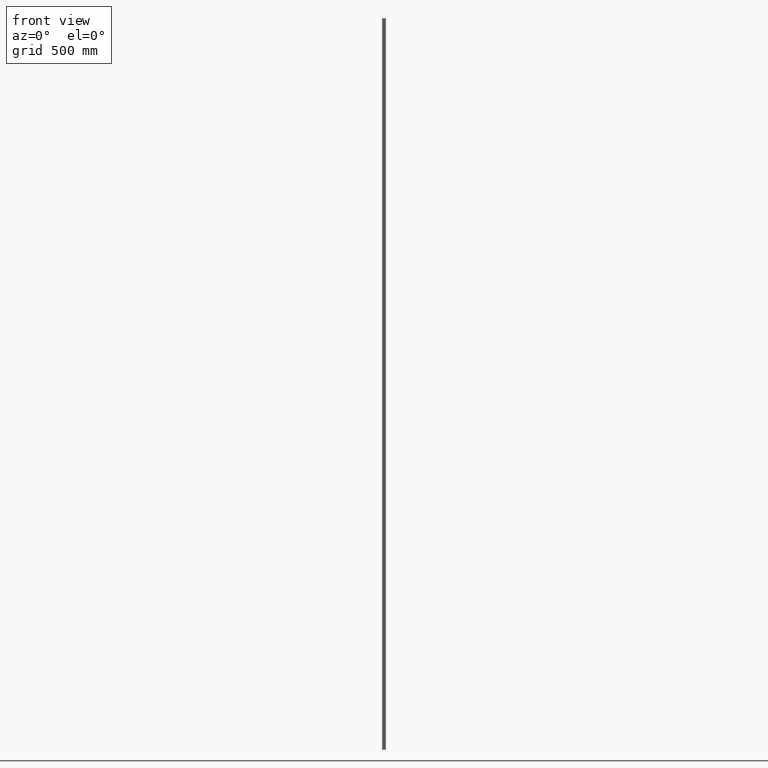
[diagram: clean part render]
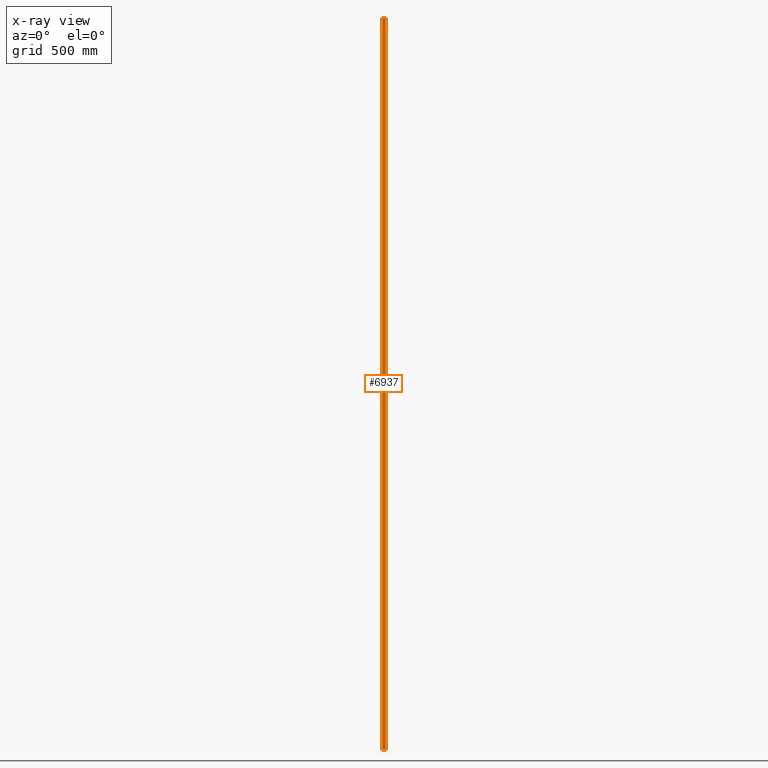
[diagram: x-ray — body ghosted, one internal face saturated and labeled with its STEP entity id]
A machine part, front view, then the same camera in x-ray: the body is ghosted and one INTERNAL B-rep face — a face not visible from any outside direction — is saturated and labeled: STEP entity #6937.
In plain terms, the highlighted planar face has unit normal (0, -1, 0).
Its self-contained STEP definition (entity closure, byte-faithful):
#61 = EDGE_CURVE ( 'NONE', #16869, #3845, #14220, .T. ) ;
#324 = DIRECTION ( 'NONE',  ( -0.000000000000000000, -0.000000000000000000, -1.000000000000000000 ) ) ;
#491 = CARTESIAN_POINT ( 'NONE',  ( -5.549999999999998934, 6.000000000000000000, -1500.000000000000000 ) ) ;
#622 = CARTESIAN_POINT ( 'NONE',  ( -5.549999999999998934, 6.000000000000000000, 1500.000000000000000 ) ) ;
#2541 = EDGE_LOOP ( 'NONE', ( #9575, #8263, #3011, #9229 ) ) ;
#2926 = LINE ( 'NONE', #491, #7095 ) ;
#3001 = EDGE_CURVE ( 'NONE', #3845, #3386, #2926, .T. ) ;
#3011 = ORIENTED_EDGE ( 'NONE', *, *, #8410, .F. ) ;
#3015 = DIRECTION ( 'NONE',  ( 0.000000000000000000, -0.000000000000000000, -1.000000000000000000 ) ) ;
#3386 = VERTEX_POINT ( 'NONE', #4392 ) ;
#3845 = VERTEX_POINT ( 'NONE', #8104 ) ;
#4392 = CARTESIAN_POINT ( 'NONE',  ( -5.549999999999998934, 6.000000000000000000, -1500.000000000000000 ) ) ;
#4805 = CARTESIAN_POINT ( 'NONE',  ( -5.549999999999998934, 6.000000000000000000, 1500.000000000000000 ) ) ;
#6155 = DIRECTION ( 'NONE',  ( -1.000000000000000000, -0.000000000000000000, -0.000000000000000000 ) ) ;
#6937 = ADVANCED_FACE ( 'NONE', ( #12872 ), #17042, .F. ) ;
#7095 = VECTOR ( 'NONE', #6155, 1000.000000000000000 ) ;
#8104 = CARTESIAN_POINT ( 'NONE',  ( 5.549999999999998934, 6.000000000000000000, -1500.000000000000000 ) ) ;
#8263 = ORIENTED_EDGE ( 'NONE', *, *, #15358, .F. ) ;
#8410 = EDGE_CURVE ( 'NONE', #16869, #10093, #12611, .T. ) ;
#8512 = VECTOR ( 'NONE', #324, 1000.000000000000000 ) ;
#9229 = ORIENTED_EDGE ( 'NONE', *, *, #61, .T. ) ;
#9575 = ORIENTED_EDGE ( 'NONE', *, *, #3001, .T. ) ;
#10093 = VERTEX_POINT ( 'NONE', #13529 ) ;
#10336 = CARTESIAN_POINT ( 'NONE',  ( 5.549999999999998934, 6.000000000000000000, 1500.000000000000000 ) ) ;
#10573 = DIRECTION ( 'NONE',  ( -0.000000000000000000, -0.000000000000000000, -1.000000000000000000 ) ) ;
#10656 = VECTOR ( 'NONE', #14724, 1000.000000000000000 ) ;
#11438 = CARTESIAN_POINT ( 'NONE',  ( -5.549999999999998934, 6.000000000000000000, 1500.000000000000000 ) ) ;
#12302 = VECTOR ( 'NONE', #10573, 1000.000000000000000 ) ;
#12611 = LINE ( 'NONE', #4805, #10656 ) ;
#12872 = FACE_OUTER_BOUND ( 'NONE', #2541, .T. ) ;
#13529 = CARTESIAN_POINT ( 'NONE',  ( -5.549999999999998934, 6.000000000000000000, 1500.000000000000000 ) ) ;
#14220 = LINE ( 'NONE', #10336, #8512 ) ;
#14292 = CARTESIAN_POINT ( 'NONE',  ( 5.549999999999998934, 6.000000000000000000, 1500.000000000000000 ) ) ;
#14724 = DIRECTION ( 'NONE',  ( -1.000000000000000000, -0.000000000000000000, -0.000000000000000000 ) ) ;
#15358 = EDGE_CURVE ( 'NONE', #10093, #3386, #17588, .T. ) ;
#15805 = DIRECTION ( 'NONE',  ( 0.000000000000000000, -1.000000000000000000, 0.000000000000000000 ) ) ;
#16337 = AXIS2_PLACEMENT_3D ( 'NONE', #11438, #15805, #3015 ) ;
#16869 = VERTEX_POINT ( 'NONE', #14292 ) ;
#17042 = PLANE ( 'NONE',  #16337 ) ;
#17588 = LINE ( 'NONE', #622, #12302 ) ;